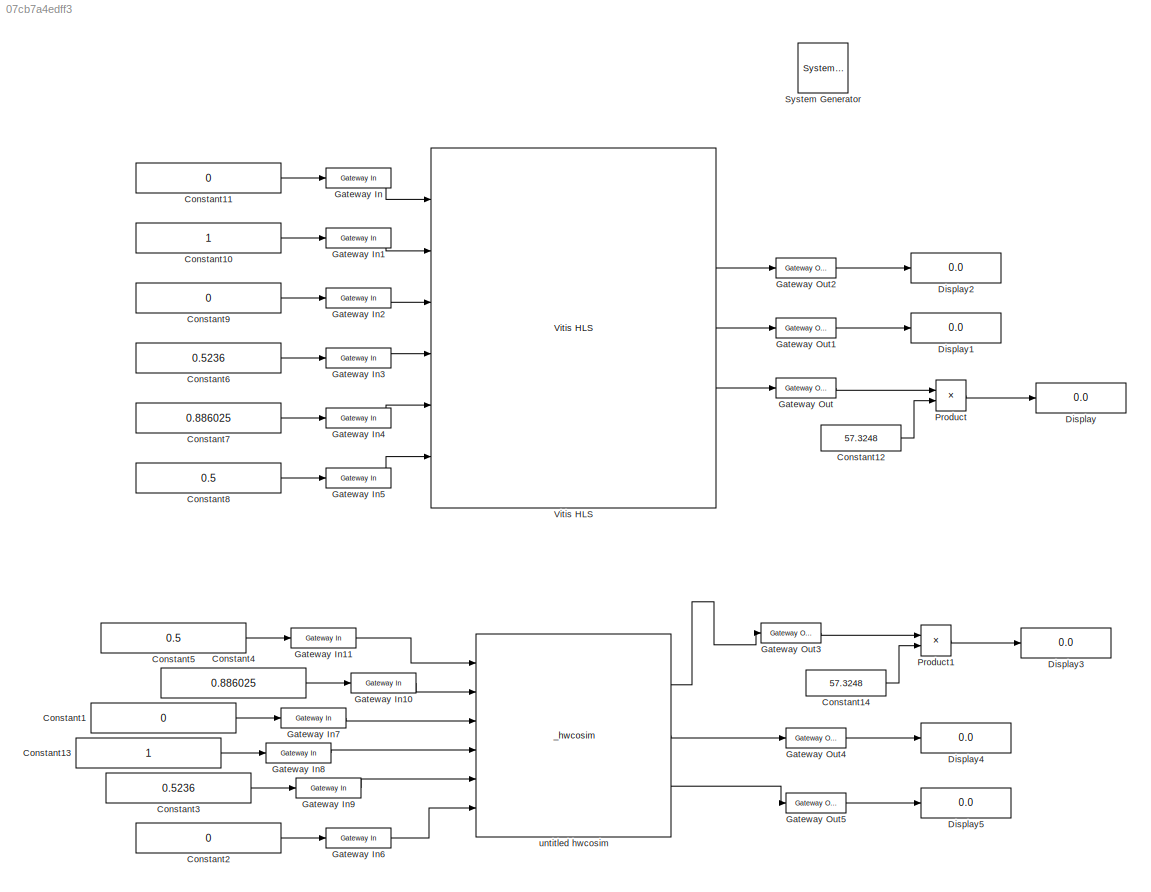
MODEL slx_07cb7a4edff3
KIND model
CONFIG AbsTol = auto
CONFIG EnableMultiTasking = off
CONFIG FixedStep = auto
CONFIG MaxStep = auto
CONFIG MinStep = auto
CONFIG RelTol = 1e-3
CONFIG SampleTimeConstraint = Unconstrained
CONFIG SolverName = VariableStepAuto
CONFIG StartTime = 0.0
CONFIG StopTime = 33
BLOCK [Reference]  System Generator  REF=xbsIndex_r4/ System Generator
  AttributesFormatString = System\nGenerator
  Ports = []
  SourceBlock = xbsIndex_r4/ System Generator
  SourceType = Xilinx System Generator Block
  Tag = genX
  UserDataPersistent = on
BLOCK [Constant] Constant1
  Commented = on
  Value = 0
BLOCK [Constant] Constant10
BLOCK [Constant] Constant11
  Value = 0
BLOCK [Constant] Constant12
  Value = 57.3248
BLOCK [Constant] Constant13
  Commented = on
BLOCK [Constant] Constant14
  Commented = on
  Value = 57.3248
BLOCK [Constant] Constant2
  Commented = on
  Value = 0
BLOCK [Constant] Constant3
  Commented = on
  Value = 0.5236
BLOCK [Constant] Constant4
  Commented = on
  Value = 0.886025
BLOCK [Constant] Constant5
  Commented = on
  Value = 0.5
BLOCK [Constant] Constant6
  Value = 0.5236
BLOCK [Constant] Constant7
  Value = 0.886025
BLOCK [Constant] Constant8
  Value = 0.5
BLOCK [Constant] Constant9
  Value = 0
BLOCK [Display] Display
  Decimation = 1
  Ports = [1]
BLOCK [Display] Display1
  Decimation = 1
  Ports = [1]
BLOCK [Display] Display2
  Decimation = 1
  Ports = [1]
BLOCK [Display] Display3
  Commented = on
  Decimation = 1
  Ports = [1]
BLOCK [Display] Display4
  Commented = on
  Decimation = 1
  Ports = [1]
BLOCK [Display] Display5
  Commented = on
  Decimation = 1
  Ports = [1]
BLOCK [Reference] Gateway In  REF=hdlBasic/Gateway In
  Ports = [1, 1]
  SourceBlock = hdlBasic/Gateway In
  SourceType = Gateway In Block
BLOCK [Reference] Gateway In1  REF=hdlBasic/Gateway In
  Ports = [1, 1]
  SourceBlock = hdlBasic/Gateway In
  SourceType = Gateway In Block
BLOCK [Reference] Gateway In10  REF=hdlBasic/Gateway In
  Commented = on
  Ports = [1, 1]
  SourceBlock = hdlBasic/Gateway In
  SourceType = Gateway In Block
BLOCK [Reference] Gateway In11  REF=hdlBasic/Gateway In
  Commented = on
  Ports = [1, 1]
  SourceBlock = hdlBasic/Gateway In
  SourceType = Gateway In Block
BLOCK [Reference] Gateway In2  REF=hdlBasic/Gateway In
  Ports = [1, 1]
  SourceBlock = hdlBasic/Gateway In
  SourceType = Gateway In Block
BLOCK [Reference] Gateway In3  REF=hdlBasic/Gateway In
  Ports = [1, 1]
  SourceBlock = hdlBasic/Gateway In
  SourceType = Gateway In Block
BLOCK [Reference] Gateway In4  REF=hdlBasic/Gateway In
  Ports = [1, 1]
  SourceBlock = hdlBasic/Gateway In
  SourceType = Gateway In Block
BLOCK [Reference] Gateway In5  REF=hdlBasic/Gateway In
  Ports = [1, 1]
  SourceBlock = hdlBasic/Gateway In
  SourceType = Gateway In Block
BLOCK [Reference] Gateway In6  REF=hdlBasic/Gateway In
  Commented = on
  Ports = [1, 1]
  SourceBlock = hdlBasic/Gateway In
  SourceType = Gateway In Block
BLOCK [Reference] Gateway In7  REF=hdlBasic/Gateway In
  Commented = on
  Ports = [1, 1]
  SourceBlock = hdlBasic/Gateway In
  SourceType = Gateway In Block
BLOCK [Reference] Gateway In8  REF=hdlBasic/Gateway In
  Commented = on
  Ports = [1, 1]
  SourceBlock = hdlBasic/Gateway In
  SourceType = Gateway In Block
BLOCK [Reference] Gateway In9  REF=hdlBasic/Gateway In
  Commented = on
  Ports = [1, 1]
  SourceBlock = hdlBasic/Gateway In
  SourceType = Gateway In Block
BLOCK [Reference] Gateway Out  REF=hdlBasic/Gateway Out
  Ports = [1, 1]
  SourceBlock = hdlBasic/Gateway Out
  SourceType = Gateway Out Block
BLOCK [Reference] Gateway Out1  REF=hdlBasic/Gateway Out
  Ports = [1, 1]
  SourceBlock = hdlBasic/Gateway Out
  SourceType = Gateway Out Block
BLOCK [Reference] Gateway Out2  REF=hdlBasic/Gateway Out
  Ports = [1, 1]
  SourceBlock = hdlBasic/Gateway Out
  SourceType = Gateway Out Block
BLOCK [Reference] Gateway Out3  REF=hdlBasic/Gateway Out
  Commented = on
  Ports = [1, 1]
  SourceBlock = hdlBasic/Gateway Out
  SourceType = Gateway Out Block
BLOCK [Reference] Gateway Out4  REF=hdlBasic/Gateway Out
  Commented = on
  Ports = [1, 1]
  SourceBlock = hdlBasic/Gateway Out
  SourceType = Gateway Out Block
BLOCK [Reference] Gateway Out5  REF=hdlBasic/Gateway Out
  Commented = on
  Ports = [1, 1]
  SourceBlock = hdlBasic/Gateway Out
  SourceType = Gateway Out Block
BLOCK [Product] Product
  Ports = [2, 1]
BLOCK [Product] Product1
  Commented = on
  Ports = [2, 1]
BLOCK [Reference] Vitis HLS  REF=hdlBasic/Vitis HLS
  Ports = [6, 11]
  SourceBlock = hdlBasic/Vitis HLS
  SourceType = Xilinx High Level Synthesis Block
BLOCK [Reference] untitled hwcosim  REF=JTAGRuntimeCosim_r4/_hwcosim
  Commented = on
  Ports = [6, 3]
  SourceBlock = JTAGRuntimeCosim_r4/_hwcosim
  SourceType = JTAG Hardware Co-simulation Block
LINE Constant10:1 -> Gateway In1:1
LINE Constant11:1 -> Gateway In:1
LINE Constant12:1 -> Product:2
LINE Constant13:1 -> Gateway In8:1
LINE Constant14:1 -> Product1:2
LINE Constant1:1 -> Gateway In7:1
LINE Constant2:1 -> Gateway In6:1
LINE Constant3:1 -> Gateway In9:1
LINE Constant4:1 -> Gateway In10:1
LINE Constant5:1 -> Gateway In11:1
LINE Constant6:1 -> Gateway In3:1
LINE Constant7:1 -> Gateway In4:1
LINE Constant8:1 -> Gateway In5:1
LINE Constant9:1 -> Gateway In2:1
LINE Gateway In10:1 -> untitled hwcosim:2
LINE Gateway In11:1 -> untitled hwcosim:1
LINE Gateway In1:1 -> Vitis HLS:2
LINE Gateway In2:1 -> Vitis HLS:3
LINE Gateway In3:1 -> Vitis HLS:4
LINE Gateway In4:1 -> Vitis HLS:5
LINE Gateway In5:1 -> Vitis HLS:6
LINE Gateway In6:1 -> untitled hwcosim:6
LINE Gateway In7:1 -> untitled hwcosim:3
LINE Gateway In8:1 -> untitled hwcosim:4
LINE Gateway In9:1 -> untitled hwcosim:5
LINE Gateway In:1 -> Vitis HLS:1
LINE Gateway Out1:1 -> Display1:1
LINE Gateway Out2:1 -> Display2:1
LINE Gateway Out3:1 -> Product1:1
LINE Gateway Out4:1 -> Display4:1
LINE Gateway Out5:1 -> Display5:1
LINE Gateway Out:1 -> Product:1
LINE Product1:1 -> Display3:1
LINE Product:1 -> Display:1
LINE Vitis HLS:4 -> Gateway Out2:1
LINE Vitis HLS:6 -> Gateway Out1:1
LINE Vitis HLS:8 -> Gateway Out:1
LINE untitled hwcosim:1 -> Gateway Out3:1
LINE untitled hwcosim:2 -> Gateway Out4:1
LINE untitled hwcosim:3 -> Gateway Out5:1
